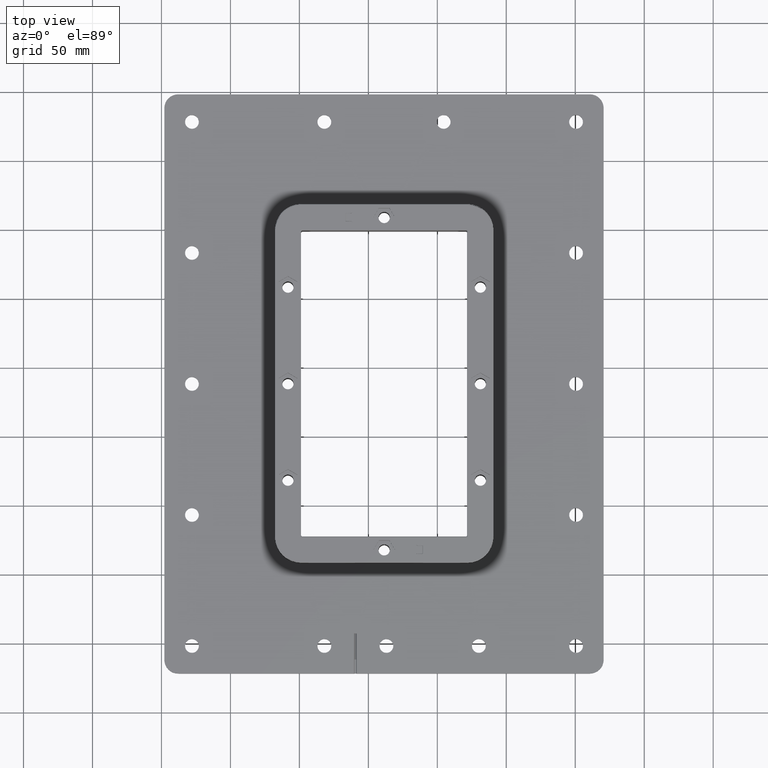
[diagram: clean part render]
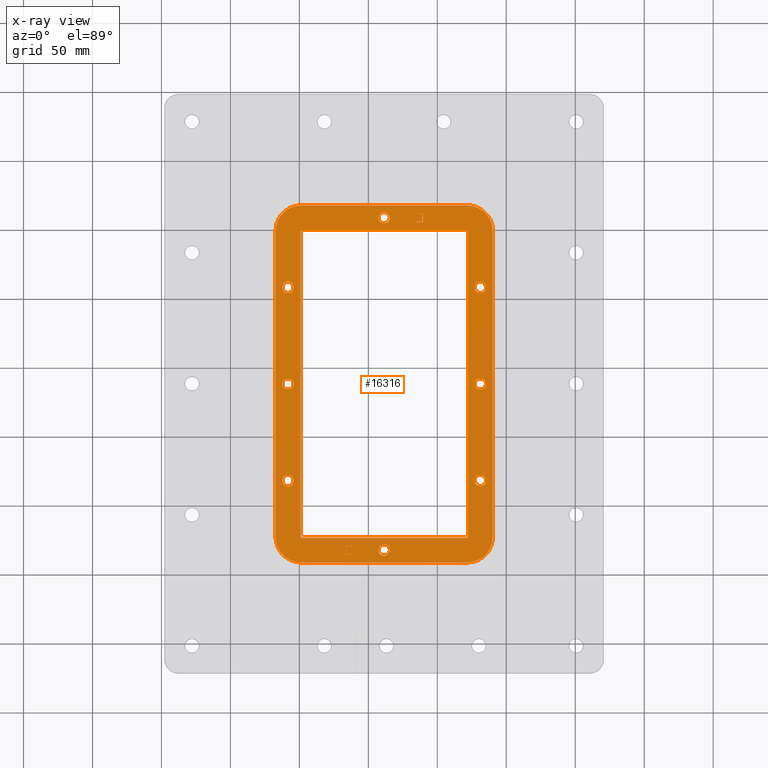
[diagram: x-ray — body ghosted, one internal face saturated and labeled with its STEP entity id]
A machine part, top view, then the same camera in x-ray: the body is ghosted and one INTERNAL B-rep face — a face not visible from any outside direction — is saturated and labeled: STEP entity #16316.
In plain terms, the highlighted planar face has unit normal (0, 0, 1).
Its self-contained STEP definition (entity closure, byte-faithful):
#130=CARTESIAN_POINT('',(272.660808067202590,289.436636017474260,-8.104976605923294));
#131=VERTEX_POINT('',#130);
#140=CARTESIAN_POINT('',(264.460808067202550,289.436636017474310,-8.104976605923294));
#141=VERTEX_POINT('',#140);
#142=CARTESIAN_POINT('',(268.560808067202570,289.436636017474260,-8.104976605923294));
#143=DIRECTION('',(0.0,0.0,1.0));
#144=DIRECTION('',(1.0,0.0,0.0));
#145=AXIS2_PLACEMENT_3D('',#142,#143,#144);
#146=CIRCLE('',#145,4.100000000000000);
#147=EDGE_CURVE('',#141,#131,#146,.T.);
#214=CARTESIAN_POINT('',(202.910808067202620,98.936636017474328,-8.104976605923294));
#215=VERTEX_POINT('',#214);
#224=CARTESIAN_POINT('',(194.710808067202550,98.936636017474342,-8.104976605923294));
#225=VERTEX_POINT('',#224);
#226=CARTESIAN_POINT('',(198.810808067202630,98.936636017474328,-8.104976605923294));
#227=DIRECTION('',(0.0,0.0,1.0));
#228=DIRECTION('',(1.0,0.0,0.0));
#229=AXIS2_PLACEMENT_3D('',#226,#227,#228);
#230=CIRCLE('',#229,4.100000000000000);
#231=EDGE_CURVE('',#225,#215,#230,.T.);
#256=CARTESIAN_POINT('',(202.910808067202620,168.936636017474230,-8.104976605923294));
#257=VERTEX_POINT('',#256);
#266=CARTESIAN_POINT('',(194.710808067202550,168.936636017474310,-8.104976605923294));
#267=VERTEX_POINT('',#266);
#268=CARTESIAN_POINT('',(198.810808067202630,168.936636017474230,-8.104976605923294));
#269=DIRECTION('',(0.0,0.0,1.0));
#270=DIRECTION('',(1.0,0.0,0.0));
#271=AXIS2_PLACEMENT_3D('',#268,#269,#270);
#272=CIRCLE('',#271,4.100000000000000);
#273=EDGE_CURVE('',#267,#257,#272,.T.);
#298=CARTESIAN_POINT('',(202.910808067202620,238.936636017474260,-8.104976605923294));
#299=VERTEX_POINT('',#298);
#308=CARTESIAN_POINT('',(194.710808067202550,238.936636017474340,-8.104976605923294));
#309=VERTEX_POINT('',#308);
#310=CARTESIAN_POINT('',(198.810808067202630,238.936636017474260,-8.104976605923294));
#311=DIRECTION('',(0.0,0.0,1.0));
#312=DIRECTION('',(1.0,0.0,0.0));
#313=AXIS2_PLACEMENT_3D('',#310,#311,#312);
#314=CIRCLE('',#313,4.100000000000000);
#315=EDGE_CURVE('',#309,#299,#314,.T.);
#3110=CARTESIAN_POINT('',(208.310808067202570,39.436636017474328,-8.104976605923294));
#3111=VERTEX_POINT('',#3110);
#3119=CARTESIAN_POINT('',(328.810808067202570,39.436636017474157,-8.104976605923326));
#3120=VERTEX_POINT('',#3119);
#3121=CARTESIAN_POINT('',(208.310808067202570,39.436636017474328,-8.104976605923294));
#3122=DIRECTION('',(1.0,0.0,0.0));
#3123=VECTOR('',#3122,120.500000000000000);
#3124=LINE('',#3121,#3123);
#3125=EDGE_CURVE('',#3111,#3120,#3124,.T.);
#3152=CARTESIAN_POINT('',(189.810808067202570,279.936636017474310,-8.104976605923294));
#3153=VERTEX_POINT('',#3152);
#3161=CARTESIAN_POINT('',(189.810808067202570,57.936636017474292,-8.104976605923294));
#3162=VERTEX_POINT('',#3161);
#3163=CARTESIAN_POINT('',(189.810808067202570,279.936636017474310,-8.104976605923294));
#3164=DIRECTION('',(0.0,-1.0,0.0));
#3165=VECTOR('',#3164,222.000000000000030);
#3166=LINE('',#3163,#3165);
#3167=EDGE_CURVE('',#3153,#3162,#3166,.T.);
#3194=CARTESIAN_POINT('',(328.810808067202570,298.436636017474140,-8.104976605923326));
#3195=VERTEX_POINT('',#3194);
#3203=CARTESIAN_POINT('',(208.310808067202570,298.436636017474310,-8.104976605923294));
#3204=VERTEX_POINT('',#3203);
#3205=CARTESIAN_POINT('',(328.810808067202570,298.436636017474140,-8.104976605923326));
#3206=DIRECTION('',(-1.0,0.0,0.0));
#3207=VECTOR('',#3206,120.500000000000000);
#3208=LINE('',#3205,#3207);
#3209=EDGE_CURVE('',#3195,#3204,#3208,.T.);
#3236=CARTESIAN_POINT('',(327.810808067202520,57.436636017474157,-8.104976605923326));
#3237=VERTEX_POINT('',#3236);
#3245=CARTESIAN_POINT('',(209.310808067202630,57.436636017474321,-8.104976605923294));
#3246=VERTEX_POINT('',#3245);
#3247=CARTESIAN_POINT('',(327.810808067202520,57.436636017474157,-8.104976605923326));
#3248=DIRECTION('',(-1.0,0.0,0.0));
#3249=VECTOR('',#3248,118.499999999999890);
#3250=LINE('',#3247,#3249);
#3251=EDGE_CURVE('',#3237,#3246,#3250,.T.);
#3278=CARTESIAN_POINT('',(207.810808067202690,58.936636017474306,-8.104976605923294));
#3279=VERTEX_POINT('',#3278);
#3287=CARTESIAN_POINT('',(207.810808067202690,278.936636017474370,-8.104976605923294));
#3288=VERTEX_POINT('',#3287);
#3289=CARTESIAN_POINT('',(207.810808067202690,58.936636017474306,-8.104976605923294));
#3290=DIRECTION('',(0.0,1.0,0.0));
#3291=VECTOR('',#3290,220.000000000000060);
#3292=LINE('',#3289,#3291);
#3293=EDGE_CURVE('',#3279,#3288,#3292,.T.);
#3320=CARTESIAN_POINT('',(209.310808067202600,280.436636017474310,-8.104976605923294));
#3321=VERTEX_POINT('',#3320);
#3329=CARTESIAN_POINT('',(327.810808067202460,280.436636017474140,-8.104976605923326));
#3330=VERTEX_POINT('',#3329);
#3331=CARTESIAN_POINT('',(209.310808067202600,280.436636017474310,-8.104976605923294));
#3332=DIRECTION('',(1.0,0.0,0.0));
#3333=VECTOR('',#3332,118.499999999999860);
#3334=LINE('',#3331,#3333);
#3335=EDGE_CURVE('',#3321,#3330,#3334,.T.);
#3942=CARTESIAN_POINT('',(240.699040768251140,51.290189408067555,-8.104976605923294));
#3943=VERTEX_POINT('',#3942);
#3959=CARTESIAN_POINT('',(240.514279000477470,50.936636017474299,-8.104976605923294));
#3960=VERTEX_POINT('',#3959);
#3967=CARTESIAN_POINT('',(241.145095133818190,50.936636017474299,-8.104976605923294));
#3968=DIRECTION('',(0.0,0.0,1.0));
#3969=DIRECTION('',(-1.0,0.0,0.0));
#3970=AXIS2_PLACEMENT_3D('',#3967,#3968,#3969);
#3971=ELLIPSE('',#3970,0.630816133340643,0.500000000000000);
#3972=EDGE_CURVE('',#3943,#3960,#3971,.T.);
#3982=CARTESIAN_POINT('',(240.699040768251110,45.583082626881037,-8.104976605923294));
#3983=VERTEX_POINT('',#3982);
#3992=CARTESIAN_POINT('',(240.514279000477470,45.936636017474299,-8.104976605923294));
#3993=VERTEX_POINT('',#3992);
#3994=CARTESIAN_POINT('',(241.145095133818190,45.936636017474299,-8.104976605923294));
#3995=DIRECTION('',(0.0,0.0,1.0));
#3996=DIRECTION('',(-1.0,0.0,0.0));
#3997=AXIS2_PLACEMENT_3D('',#3994,#3995,#3996);
#3998=ELLIPSE('',#3997,0.630816133340643,0.500000000000000);
#3999=EDGE_CURVE('',#3993,#3983,#3998,.T.);
#4026=CARTESIAN_POINT('',(296.296412139485990,286.683082626881120,-8.104976605923294));
#4027=VERTEX_POINT('',#4026);
#4043=CARTESIAN_POINT('',(295.850357773918970,286.536636017474340,-8.104976605923294));
#4044=VERTEX_POINT('',#4043);
#4051=CARTESIAN_POINT('',(295.850357773918970,287.036636017474390,-8.104976605923294));
#4052=DIRECTION('',(0.0,0.0,1.0));
#4053=DIRECTION('',(1.0,0.0,0.0));
#4054=AXIS2_PLACEMENT_3D('',#4051,#4052,#4053);
#4055=ELLIPSE('',#4054,0.630816133340643,0.500000000000000);
#4056=EDGE_CURVE('',#4044,#4027,#4055,.T.);
#4066=CARTESIAN_POINT('',(296.296412139485990,292.190189408067570,-8.104976605923296));
#4067=VERTEX_POINT('',#4066);
#4076=CARTESIAN_POINT('',(295.850357773918970,292.336636017474290,-8.104976605923294));
#4077=VERTEX_POINT('',#4076);
#4078=CARTESIAN_POINT('',(295.850357773918970,291.836636017474290,-8.104976605923296));
#4079=DIRECTION('',(0.0,0.0,1.0));
#4080=DIRECTION('',(1.0,0.0,0.0));
#4081=AXIS2_PLACEMENT_3D('',#4078,#4079,#4080);
#4082=ELLIPSE('',#4081,0.630816133340643,0.500000000000000);
#4083=EDGE_CURVE('',#4067,#4077,#4082,.T.);
#4276=CARTESIAN_POINT('',(245.191284531655440,45.143742798660867,-8.104976605923294));
#4277=VERTEX_POINT('',#4276);
#4286=CARTESIAN_POINT('',(244.299175800521340,45.436636017474328,-8.104976605923294));
#4287=VERTEX_POINT('',#4286);
#4288=CARTESIAN_POINT('',(244.299175800521340,44.436636017474306,-8.104976605923294));
#4289=DIRECTION('',(0.0,0.0,1.0));
#4290=DIRECTION('',(1.0,0.0,0.0));
#4291=AXIS2_PLACEMENT_3D('',#4288,#4289,#4290);
#4292=ELLIPSE('',#4291,1.261632266681286,1.0);
#4293=EDGE_CURVE('',#4277,#4287,#4292,.T.);
#4320=CARTESIAN_POINT('',(245.191284531655470,51.729529236287760,-8.104976605923294));
#4321=VERTEX_POINT('',#4320);
#4337=CARTESIAN_POINT('',(244.299175800521370,51.436636017474335,-8.104976605923294));
#4338=VERTEX_POINT('',#4337);
#4345=CARTESIAN_POINT('',(244.299175800521370,52.436636017474299,-8.104976605923294));
#4346=DIRECTION('',(0.0,0.0,1.0));
#4347=DIRECTION('',(1.0,0.0,0.0));
#4348=AXIS2_PLACEMENT_3D('',#4345,#4346,#4347);
#4349=ELLIPSE('',#4348,1.261632266681287,1.0);
#4350=EDGE_CURVE('',#4338,#4321,#4349,.T.);
#4360=CARTESIAN_POINT('',(291.930331602749790,286.243742798660890,-8.104976605923294));
#4361=VERTEX_POINT('',#4360);
#4370=CARTESIAN_POINT('',(292.822440333883890,286.536636017474340,-8.104976605923294));
#4371=VERTEX_POINT('',#4370);
#4372=CARTESIAN_POINT('',(292.822440333883890,285.536636017474340,-8.104976605923294));
#4373=DIRECTION('',(0.0,0.0,1.0));
#4374=DIRECTION('',(-1.0,0.0,0.0));
#4375=AXIS2_PLACEMENT_3D('',#4372,#4373,#4374);
#4376=ELLIPSE('',#4375,1.261632266681286,1.0);
#4377=EDGE_CURVE('',#4371,#4361,#4376,.T.);
#4404=CARTESIAN_POINT('',(291.930331602749790,292.629529236287790,-8.104976605923294));
#4405=VERTEX_POINT('',#4404);
#4421=CARTESIAN_POINT('',(292.822440333883890,292.336636017474290,-8.104976605923294));
#4422=VERTEX_POINT('',#4421);
#4429=CARTESIAN_POINT('',(292.822440333883890,293.336636017474350,-8.104976605923294));
#4430=DIRECTION('',(0.0,0.0,1.0));
#4431=DIRECTION('',(-1.0,0.0,0.0));
#4432=AXIS2_PLACEMENT_3D('',#4429,#4430,#4431);
#4433=ELLIPSE('',#4432,1.261632266681286,1.0);
#4434=EDGE_CURVE('',#4405,#4422,#4433,.T.);
#4570=CARTESIAN_POINT('',(264.460808067202550,48.436636017474221,-8.104976605923326));
#4571=VERTEX_POINT('',#4570);
#4580=CARTESIAN_POINT('',(272.660808067202590,48.436636017474157,-8.104976605923326));
#4581=VERTEX_POINT('',#4580);
#4582=CARTESIAN_POINT('',(268.560808067202570,48.436636017474221,-8.104976605923326));
#4583=DIRECTION('',(0.0,0.0,1.0));
#4584=DIRECTION('',(-1.0,0.0,0.0));
#4585=AXIS2_PLACEMENT_3D('',#4582,#4583,#4584);
#4586=CIRCLE('',#4585,4.100000000000000);
#4587=EDGE_CURVE('',#4581,#4571,#4586,.T.);
#4654=CARTESIAN_POINT('',(334.210808067202550,238.936636017474200,-8.104976605923326));
#4655=VERTEX_POINT('',#4654);
#4664=CARTESIAN_POINT('',(342.410808067202710,238.936636017474170,-8.104976605923326));
#4665=VERTEX_POINT('',#4664);
#4666=CARTESIAN_POINT('',(338.310808067202570,238.936636017474200,-8.104976605923326));
#4667=DIRECTION('',(0.0,0.0,1.0));
#4668=DIRECTION('',(-1.0,0.0,0.0));
#4669=AXIS2_PLACEMENT_3D('',#4666,#4667,#4668);
#4670=CIRCLE('',#4669,4.100000000000000);
#4671=EDGE_CURVE('',#4665,#4655,#4670,.T.);
#4696=CARTESIAN_POINT('',(334.210808067202550,168.936636017474230,-8.104976605923326));
#4697=VERTEX_POINT('',#4696);
#4706=CARTESIAN_POINT('',(342.410808067202710,168.936636017474170,-8.104976605923326));
#4707=VERTEX_POINT('',#4706);
#4708=CARTESIAN_POINT('',(338.310808067202570,168.936636017474230,-8.104976605923326));
#4709=DIRECTION('',(0.0,0.0,1.0));
#4710=DIRECTION('',(-1.0,0.0,0.0));
#4711=AXIS2_PLACEMENT_3D('',#4708,#4709,#4710);
#4712=CIRCLE('',#4711,4.100000000000000);
#4713=EDGE_CURVE('',#4707,#4697,#4712,.T.);
#4738=CARTESIAN_POINT('',(334.210808067202550,98.936636017474214,-8.104976605923326));
#4739=VERTEX_POINT('',#4738);
#4748=CARTESIAN_POINT('',(342.410808067202710,98.936636017474186,-8.104976605923326));
#4749=VERTEX_POINT('',#4748);
#4750=CARTESIAN_POINT('',(338.310808067202570,98.936636017474214,-8.104976605923326));
#4751=DIRECTION('',(0.0,0.0,1.0));
#4752=DIRECTION('',(-1.0,0.0,0.0));
#4753=AXIS2_PLACEMENT_3D('',#4750,#4751,#4752);
#4754=CIRCLE('',#4753,4.100000000000000);
#4755=EDGE_CURVE('',#4749,#4739,#4754,.T.);
#7350=CARTESIAN_POINT('',(347.310808067202570,57.936636017474150,-8.104976605923326));
#7351=VERTEX_POINT('',#7350);
#7359=CARTESIAN_POINT('',(347.310808067202570,279.936636017474200,-8.104976605923326));
#7360=VERTEX_POINT('',#7359);
#7361=CARTESIAN_POINT('',(347.310808067202570,57.936636017474150,-8.104976605923326));
#7362=DIRECTION('',(0.0,1.0,0.0));
#7363=VECTOR('',#7362,222.000000000000060);
#7364=LINE('',#7361,#7363);
#7365=EDGE_CURVE('',#7351,#7360,#7364,.T.);
#7392=CARTESIAN_POINT('',(329.310808067202520,278.936636017474140,-8.104976605923326));
#7393=VERTEX_POINT('',#7392);
#7401=CARTESIAN_POINT('',(329.310808067202520,58.936636017474164,-8.104976605923326));
#7402=VERTEX_POINT('',#7401);
#7403=CARTESIAN_POINT('',(329.310808067202520,278.936636017474140,-8.104976605923326));
#7404=DIRECTION('',(0.0,-1.0,0.0));
#7405=VECTOR('',#7404,219.999999999999970);
#7406=LINE('',#7403,#7405);
#7407=EDGE_CURVE('',#7393,#7402,#7406,.T.);
#8014=CARTESIAN_POINT('',(296.422575366154040,286.583082626880870,-8.104976605923326));
#8015=VERTEX_POINT('',#8014);
#8031=CARTESIAN_POINT('',(296.607337133927670,286.936636017474140,-8.104976605923326));
#8032=VERTEX_POINT('',#8031);
#8039=CARTESIAN_POINT('',(295.976521000587010,286.936636017474140,-8.104976605923326));
#8040=DIRECTION('',(0.0,0.0,1.0));
#8041=DIRECTION('',(1.0,0.0,0.0));
#8042=AXIS2_PLACEMENT_3D('',#8039,#8040,#8041);
#8043=ELLIPSE('',#8042,0.630816133340643,0.500000000000000);
#8044=EDGE_CURVE('',#8015,#8032,#8043,.T.);
#8054=CARTESIAN_POINT('',(296.422575366154040,292.290189408067420,-8.104976605923326));
#8055=VERTEX_POINT('',#8054);
#8064=CARTESIAN_POINT('',(296.607337133927670,291.936636017474140,-8.104976605923326));
#8065=VERTEX_POINT('',#8064);
#8066=CARTESIAN_POINT('',(295.976521000587010,291.936636017474140,-8.104976605923326));
#8067=DIRECTION('',(0.0,0.0,1.0));
#8068=DIRECTION('',(1.0,0.0,0.0));
#8069=AXIS2_PLACEMENT_3D('',#8066,#8067,#8068);
#8070=ELLIPSE('',#8069,0.630816133340643,0.500000000000000);
#8071=EDGE_CURVE('',#8065,#8055,#8070,.T.);
#8098=CARTESIAN_POINT('',(240.825203994919150,51.190189408067404,-8.104976605923326));
#8099=VERTEX_POINT('',#8098);
#8115=CARTESIAN_POINT('',(241.271258360486200,51.336636017474142,-8.104976605923326));
#8116=VERTEX_POINT('',#8115);
#8123=CARTESIAN_POINT('',(241.271258360486200,50.836636017474142,-8.104976605923326));
#8124=DIRECTION('',(0.0,0.0,1.0));
#8125=DIRECTION('',(-1.0,0.0,0.0));
#8126=AXIS2_PLACEMENT_3D('',#8123,#8124,#8125);
#8127=ELLIPSE('',#8126,0.630816133340643,0.500000000000000);
#8128=EDGE_CURVE('',#8116,#8099,#8127,.T.);
#8138=CARTESIAN_POINT('',(240.825203994919150,45.683082626880896,-8.104976605923328));
#8139=VERTEX_POINT('',#8138);
#8148=CARTESIAN_POINT('',(241.271258360486200,45.536636017474180,-8.104976605923326));
#8149=VERTEX_POINT('',#8148);
#8150=CARTESIAN_POINT('',(241.271258360486200,46.036636017474173,-8.104976605923328));
#8151=DIRECTION('',(0.0,0.0,1.0));
#8152=DIRECTION('',(-1.0,0.0,0.0));
#8153=AXIS2_PLACEMENT_3D('',#8150,#8151,#8152);
#8154=ELLIPSE('',#8153,0.630816133340643,0.500000000000000);
#8155=EDGE_CURVE('',#8139,#8149,#8154,.T.);
#8348=CARTESIAN_POINT('',(291.930331602749730,292.729529236287590,-8.104976605923326));
#8349=VERTEX_POINT('',#8348);
#8358=CARTESIAN_POINT('',(292.822440333883830,292.436636017474140,-8.104976605923326));
#8359=VERTEX_POINT('',#8358);
#8360=CARTESIAN_POINT('',(292.822440333883830,293.436636017474140,-8.104976605923326));
#8361=DIRECTION('',(0.0,0.0,1.0));
#8362=DIRECTION('',(-1.0,0.0,0.0));
#8363=AXIS2_PLACEMENT_3D('',#8360,#8361,#8362);
#8364=ELLIPSE('',#8363,1.261632266681286,1.0);
#8365=EDGE_CURVE('',#8349,#8359,#8364,.T.);
#8392=CARTESIAN_POINT('',(291.930331602749790,286.143742798660810,-8.104976605923326));
#8393=VERTEX_POINT('',#8392);
#8409=CARTESIAN_POINT('',(292.822440333883830,286.436636017474140,-8.104976605923326));
#8410=VERTEX_POINT('',#8409);
#8417=CARTESIAN_POINT('',(292.822440333883830,285.436636017474200,-8.104976605923326));
#8418=DIRECTION('',(0.0,0.0,1.0));
#8419=DIRECTION('',(-1.0,0.0,0.0));
#8420=AXIS2_PLACEMENT_3D('',#8417,#8418,#8419);
#8421=ELLIPSE('',#8420,1.261632266681287,1.0);
#8422=EDGE_CURVE('',#8410,#8393,#8421,.T.);
#8432=CARTESIAN_POINT('',(245.191284531655300,51.629529236287553,-8.104976605923326));
#8433=VERTEX_POINT('',#8432);
#8442=CARTESIAN_POINT('',(244.299175800521230,51.336636017474142,-8.104976605923326));
#8443=VERTEX_POINT('',#8442);
#8444=CARTESIAN_POINT('',(244.299175800521230,52.336636017474127,-8.104976605923326));
#8445=DIRECTION('',(0.0,0.0,1.0));
#8446=DIRECTION('',(1.0,0.0,0.0));
#8447=AXIS2_PLACEMENT_3D('',#8444,#8445,#8446);
#8448=ELLIPSE('',#8447,1.261632266681286,1.0);
#8449=EDGE_CURVE('',#8443,#8433,#8448,.T.);
#8476=CARTESIAN_POINT('',(245.191284531655270,45.243742798660755,-8.104976605923326));
#8477=VERTEX_POINT('',#8476);
#8493=CARTESIAN_POINT('',(244.299175800521230,45.536636017474180,-8.104976605923326));
#8494=VERTEX_POINT('',#8493);
#8501=CARTESIAN_POINT('',(244.299175800521230,44.536636017474187,-8.104976605923326));
#8502=DIRECTION('',(0.0,0.0,1.0));
#8503=DIRECTION('',(1.0,0.0,0.0));
#8504=AXIS2_PLACEMENT_3D('',#8501,#8502,#8503);
#8505=ELLIPSE('',#8504,1.261632266681286,1.0);
#8506=EDGE_CURVE('',#8477,#8494,#8505,.T.);
#8642=CARTESIAN_POINT('',(245.560808067202630,44.436636017474306,-8.104976605923294));
#8643=VERTEX_POINT('',#8642);
#8658=CARTESIAN_POINT('',(245.560808067202600,44.536636017474187,-8.104976605923326));
#8659=VERTEX_POINT('',#8658);
#8666=CARTESIAN_POINT('',(245.560808067202600,44.536636017474187,-8.104976605923326));
#8667=DIRECTION('',(2.842171E-013,-1.0,3.197442E-013));
#8668=VECTOR('',#8667,0.099999999999881);
#8669=LINE('',#8666,#8668);
#8670=EDGE_CURVE('',#8659,#8643,#8669,.T.);
#8971=CARTESIAN_POINT('',(244.299175800521230,44.536636017474187,-8.104976605923326));
#8972=DIRECTION('',(0.0,0.0,1.0));
#8973=DIRECTION('',(1.0,0.0,0.0));
#8974=AXIS2_PLACEMENT_3D('',#8971,#8972,#8973);
#8975=ELLIPSE('',#8974,1.261632266681286,1.0);
#8976=EDGE_CURVE('',#8659,#8477,#8975,.T.);
#9002=CARTESIAN_POINT('',(244.299175800521230,45.536636017474180,-8.104976605923326));
#9003=DIRECTION('',(-1.0,0.0,0.0));
#9004=VECTOR('',#9003,3.027917440035026);
#9005=LINE('',#9002,#9004);
#9006=EDGE_CURVE('',#8494,#8149,#9005,.T.);
#9026=CARTESIAN_POINT('',(245.560808067202600,52.336636017474127,-8.104976605923326));
#9027=VERTEX_POINT('',#9026);
#9034=CARTESIAN_POINT('',(244.299175800521230,52.336636017474127,-8.104976605923326));
#9035=DIRECTION('',(0.0,0.0,1.0));
#9036=DIRECTION('',(1.0,0.0,0.0));
#9037=AXIS2_PLACEMENT_3D('',#9034,#9035,#9036);
#9038=ELLIPSE('',#9037,1.261632266681286,1.0);
#9039=EDGE_CURVE('',#8433,#9027,#9038,.T.);
#9050=CARTESIAN_POINT('',(241.271258360486200,51.336636017474142,-8.104976605923326));
#9051=DIRECTION('',(1.0,0.0,0.0));
#9052=VECTOR('',#9051,3.027917440035026);
#9053=LINE('',#9050,#9052);
#9054=EDGE_CURVE('',#8116,#8443,#9053,.T.);
#9072=CARTESIAN_POINT('',(291.560808067202520,285.436636017474200,-8.104976605923326));
#9073=VERTEX_POINT('',#9072);
#9074=CARTESIAN_POINT('',(292.822440333883830,285.436636017474200,-8.104976605923326));
#9075=DIRECTION('',(0.0,0.0,1.0));
#9076=DIRECTION('',(-1.0,0.0,0.0));
#9077=AXIS2_PLACEMENT_3D('',#9074,#9075,#9076);
#9078=ELLIPSE('',#9077,1.261632266681287,1.0);
#9079=EDGE_CURVE('',#8393,#9073,#9078,.T.);
#9098=CARTESIAN_POINT('',(291.560808067202520,293.436636017474140,-8.104976605923326));
#9099=VERTEX_POINT('',#9098);
#9106=CARTESIAN_POINT('',(292.822440333883830,293.436636017474140,-8.104976605923326));
#9107=DIRECTION('',(0.0,0.0,1.0));
#9108=DIRECTION('',(-1.0,0.0,0.0));
#9109=AXIS2_PLACEMENT_3D('',#9106,#9107,#9108);
#9110=ELLIPSE('',#9109,1.261632266681286,1.0);
#9111=EDGE_CURVE('',#9099,#8349,#9110,.T.);
#9122=CARTESIAN_POINT('',(295.976521000587010,292.436636017474140,-8.104976605923326));
#9123=VERTEX_POINT('',#9122);
#9124=CARTESIAN_POINT('',(295.976521000587010,292.436636017474140,-8.104976605923326));
#9125=DIRECTION('',(-1.0,0.0,0.0));
#9126=VECTOR('',#9125,3.154080666703180);
#9127=LINE('',#9124,#9126);
#9128=EDGE_CURVE('',#9123,#8359,#9127,.T.);
#9326=CARTESIAN_POINT('',(240.640442227145570,46.036636017474173,-8.104976605923326));
#9327=VERTEX_POINT('',#9326);
#9334=CARTESIAN_POINT('',(241.271258360486200,46.036636017474173,-8.104976605923328));
#9335=DIRECTION('',(0.0,0.0,1.0));
#9336=DIRECTION('',(-1.0,0.0,0.0));
#9337=AXIS2_PLACEMENT_3D('',#9334,#9335,#9336);
#9338=ELLIPSE('',#9337,0.630816133340643,0.500000000000000);
#9339=EDGE_CURVE('',#9327,#8139,#9338,.T.);
#9350=CARTESIAN_POINT('',(240.640442227145570,50.836636017474142,-8.104976605923326));
#9351=VERTEX_POINT('',#9350);
#9352=CARTESIAN_POINT('',(241.271258360486200,50.836636017474142,-8.104976605923326));
#9353=DIRECTION('',(0.0,0.0,1.0));
#9354=DIRECTION('',(-1.0,0.0,0.0));
#9355=AXIS2_PLACEMENT_3D('',#9352,#9353,#9354);
#9356=ELLIPSE('',#9355,0.630816133340643,0.500000000000000);
#9357=EDGE_CURVE('',#8099,#9351,#9356,.T.);
#9385=CARTESIAN_POINT('',(295.976521000587010,291.936636017474140,-8.104976605923326));
#9386=DIRECTION('',(0.0,0.0,1.0));
#9387=DIRECTION('',(1.0,0.0,0.0));
#9388=AXIS2_PLACEMENT_3D('',#9385,#9386,#9387);
#9389=ELLIPSE('',#9388,0.630816133340643,0.500000000000000);
#9390=EDGE_CURVE('',#8055,#9123,#9389,.T.);
#9401=CARTESIAN_POINT('',(296.607337133927670,286.936636017474140,-8.104976605923326));
#9402=DIRECTION('',(0.0,1.0,0.0));
#9403=VECTOR('',#9402,5.0);
#9404=LINE('',#9401,#9403);
#9405=EDGE_CURVE('',#8032,#8065,#9404,.T.);
#9418=CARTESIAN_POINT('',(295.976521000587010,286.436636017474140,-8.104976605923326));
#9419=VERTEX_POINT('',#9418);
#9420=CARTESIAN_POINT('',(295.976521000587010,286.936636017474140,-8.104976605923326));
#9421=DIRECTION('',(0.0,0.0,1.0));
#9422=DIRECTION('',(1.0,0.0,0.0));
#9423=AXIS2_PLACEMENT_3D('',#9420,#9421,#9422);
#9424=ELLIPSE('',#9423,0.630816133340643,0.500000000000000);
#9425=EDGE_CURVE('',#9419,#8015,#9424,.T.);
#9445=CARTESIAN_POINT('',(292.822440333883830,286.436636017474140,-8.104976605923326));
#9446=DIRECTION('',(1.0,0.0,0.0));
#9447=VECTOR('',#9446,3.154080666703180);
#9448=LINE('',#9445,#9447);
#9449=EDGE_CURVE('',#8410,#9419,#9448,.T.);
#9533=CARTESIAN_POINT('',(240.640442227145570,50.836636017474142,-8.104976605923326));
#9534=DIRECTION('',(0.0,-1.0,0.0));
#9535=VECTOR('',#9534,4.799999999999969);
#9536=LINE('',#9533,#9535);
#9537=EDGE_CURVE('',#9351,#9327,#9536,.T.);
#9547=CARTESIAN_POINT('',(245.560808067202630,52.436636017474299,-8.104976605923294));
#9548=VERTEX_POINT('',#9547);
#9557=CARTESIAN_POINT('',(245.560808067202630,52.436636017474299,-8.104976605923294));
#9558=DIRECTION('',(-2.842171E-013,-1.0,-3.197442E-013));
#9559=VECTOR('',#9558,0.100000000000172);
#9560=LINE('',#9557,#9559);
#9561=EDGE_CURVE('',#9548,#9027,#9560,.T.);
#10363=CARTESIAN_POINT('',(327.810808067202520,58.936636017474164,-8.104976605923326));
#10364=DIRECTION('',(7.498304E-033,-7.498304E-033,-1.000000000000000));
#10365=DIRECTION('',(0.707106781186547,-0.707106781186547,1.060420E-032));
#10366=AXIS2_PLACEMENT_3D('',#10363,#10364,#10365);
#10367=CIRCLE('',#10366,1.500000000000000);
#10368=EDGE_CURVE('',#7402,#3237,#10367,.T.);
#10427=CARTESIAN_POINT('',(327.810808067202460,278.936636017474140,-8.104976605923326));
#10428=DIRECTION('',(-7.498304E-033,-7.498304E-033,-1.000000000000000));
#10429=DIRECTION('',(0.707106781186547,0.707106781186547,-1.060420E-032));
#10430=AXIS2_PLACEMENT_3D('',#10427,#10428,#10429);
#10431=CIRCLE('',#10430,1.500000000000000);
#10432=EDGE_CURVE('',#3330,#7393,#10431,.T.);
#10444=CARTESIAN_POINT('',(328.810808067202570,57.936636017474150,-8.104976605923326));
#10445=DIRECTION('',(-7.498304E-033,7.498304E-033,1.000000000000000));
#10446=DIRECTION('',(0.707106781186548,-0.707106781186548,1.060420E-032));
#10447=AXIS2_PLACEMENT_3D('',#10444,#10445,#10446);
#10448=CIRCLE('',#10447,18.500000000000000);
#10449=EDGE_CURVE('',#3120,#7351,#10448,.T.);
#10510=CARTESIAN_POINT('',(328.810808067202570,279.936636017474200,-8.104976605923326));
#10511=DIRECTION('',(7.498304E-033,7.498304E-033,1.000000000000000));
#10512=DIRECTION('',(0.707106781186548,0.707106781186548,-1.060420E-032));
#10513=AXIS2_PLACEMENT_3D('',#10510,#10511,#10512);
#10514=CIRCLE('',#10513,18.500000000000000);
#10515=EDGE_CURVE('',#7360,#3195,#10514,.T.);
#14456=CARTESIAN_POINT('',(338.310808067202570,98.936636017474214,-8.104976605923326));
#14457=DIRECTION('',(0.0,0.0,1.0));
#14458=DIRECTION('',(-1.0,0.0,0.0));
#14459=AXIS2_PLACEMENT_3D('',#14456,#14457,#14458);
#14460=CIRCLE('',#14459,4.100000000000000);
#14461=EDGE_CURVE('',#4739,#4749,#14460,.T.);
#14480=CARTESIAN_POINT('',(338.310808067202570,168.936636017474230,-8.104976605923326));
#14481=DIRECTION('',(0.0,0.0,1.0));
#14482=DIRECTION('',(-1.0,0.0,0.0));
#14483=AXIS2_PLACEMENT_3D('',#14480,#14481,#14482);
#14484=CIRCLE('',#14483,4.100000000000000);
#14485=EDGE_CURVE('',#4697,#4707,#14484,.T.);
#14504=CARTESIAN_POINT('',(338.310808067202570,238.936636017474200,-8.104976605923326));
#14505=DIRECTION('',(0.0,0.0,1.0));
#14506=DIRECTION('',(-1.0,0.0,0.0));
#14507=AXIS2_PLACEMENT_3D('',#14504,#14505,#14506);
#14508=CIRCLE('',#14507,4.100000000000000);
#14509=EDGE_CURVE('',#4655,#4665,#14508,.T.);
#14540=CARTESIAN_POINT('',(268.560808067202570,48.436636017474221,-8.104976605923326));
#14541=DIRECTION('',(0.0,0.0,1.0));
#14542=DIRECTION('',(-1.0,0.0,0.0));
#14543=AXIS2_PLACEMENT_3D('',#14540,#14541,#14542);
#14544=CIRCLE('',#14543,4.100000000000000);
#14545=EDGE_CURVE('',#4571,#4581,#14544,.T.);
#15465=CARTESIAN_POINT('',(291.560808067202570,293.336636017474350,-8.104976605923294));
#15466=VERTEX_POINT('',#15465);
#15473=CARTESIAN_POINT('',(291.560808067202570,293.336636017474350,-8.104976605923294));
#15474=DIRECTION('',(-5.684342E-013,1.0,-3.197442E-013));
#15475=VECTOR('',#15474,0.099999999999795);
#15476=LINE('',#15473,#15475);
#15477=EDGE_CURVE('',#15466,#9099,#15476,.T.);
#16001=CARTESIAN_POINT('',(292.822440333883890,293.336636017474350,-8.104976605923294));
#16002=DIRECTION('',(0.0,0.0,1.0));
#16003=DIRECTION('',(-1.0,0.0,0.0));
#16004=AXIS2_PLACEMENT_3D('',#16001,#16002,#16003);
#16005=ELLIPSE('',#16004,1.261632266681286,1.0);
#16006=EDGE_CURVE('',#15466,#4405,#16005,.T.);
#16021=CARTESIAN_POINT('',(292.822440333883890,292.336636017474290,-8.104976605923294));
#16022=DIRECTION('',(1.0,0.0,0.0));
#16023=VECTOR('',#16022,3.027917440035083);
#16024=LINE('',#16021,#16023);
#16025=EDGE_CURVE('',#4422,#4077,#16024,.T.);
#16037=CARTESIAN_POINT('',(291.560808067202570,285.536636017474340,-8.104976605923294));
#16038=VERTEX_POINT('',#16037);
#16045=CARTESIAN_POINT('',(292.822440333883890,285.536636017474340,-8.104976605923294));
#16046=DIRECTION('',(0.0,0.0,1.0));
#16047=DIRECTION('',(-1.0,0.0,0.0));
#16048=AXIS2_PLACEMENT_3D('',#16045,#16046,#16047);
#16049=ELLIPSE('',#16048,1.261632266681286,1.0);
#16050=EDGE_CURVE('',#4361,#16038,#16049,.T.);
#16061=CARTESIAN_POINT('',(295.850357773918970,286.536636017474340,-8.104976605923294));
#16062=DIRECTION('',(-1.0,0.0,0.0));
#16063=VECTOR('',#16062,3.027917440035083);
#16064=LINE('',#16061,#16063);
#16065=EDGE_CURVE('',#4044,#4371,#16064,.T.);
#16078=CARTESIAN_POINT('',(244.299175800521370,52.436636017474299,-8.104976605923294));
#16079=DIRECTION('',(0.0,0.0,1.0));
#16080=DIRECTION('',(1.0,0.0,0.0));
#16081=AXIS2_PLACEMENT_3D('',#16078,#16079,#16080);
#16082=ELLIPSE('',#16081,1.261632266681287,1.0);
#16083=EDGE_CURVE('',#4321,#9548,#16082,.T.);
#16096=CARTESIAN_POINT('',(245.185808067202660,168.936636017474230,-8.104976605923294));
#16097=DIRECTION('',(0.0,0.0,1.0));
#16098=DIRECTION('',(1.0,0.0,0.0));
#16099=AXIS2_PLACEMENT_3D('',#16096,#16097,#16098);
#16100=PLANE('',#16099);
#16101=ORIENTED_EDGE('',*,*,#3209,.F.);
#16102=ORIENTED_EDGE('',*,*,#10515,.F.);
#16103=ORIENTED_EDGE('',*,*,#7365,.F.);
#16104=ORIENTED_EDGE('',*,*,#10449,.F.);
#16105=ORIENTED_EDGE('',*,*,#3125,.F.);
#16106=CARTESIAN_POINT('',(208.310808067202570,57.936636017474292,-8.104976605923294));
#16107=DIRECTION('',(0.0,0.0,1.000000000000000));
#16108=DIRECTION('',(-0.707106781186548,-0.707106781186548,0.0));
#16109=AXIS2_PLACEMENT_3D('',#16106,#16107,#16108);
#16110=CIRCLE('',#16109,18.500000000000000);
#16111=EDGE_CURVE('',#3162,#3111,#16110,.T.);
#16112=ORIENTED_EDGE('',*,*,#16111,.F.);
#16113=ORIENTED_EDGE('',*,*,#3167,.F.);
#16114=CARTESIAN_POINT('',(208.310808067202570,279.936636017474310,-8.104976605923294));
#16115=DIRECTION('',(0.0,0.0,1.000000000000000));
#16116=DIRECTION('',(-0.707106781186548,0.707106781186548,0.0));
#16117=AXIS2_PLACEMENT_3D('',#16114,#16115,#16116);
#16118=CIRCLE('',#16117,18.500000000000000);
#16119=EDGE_CURVE('',#3204,#3153,#16118,.T.);
#16120=ORIENTED_EDGE('',*,*,#16119,.F.);
#16121=EDGE_LOOP('',(#16101,#16102,#16103,#16104,#16105,#16112,#16113,#16120));
#16122=FACE_OUTER_BOUND('',#16121,.T.);
#16123=ORIENTED_EDGE('',*,*,#3335,.F.);
#16124=CARTESIAN_POINT('',(209.310808067202600,278.936636017474370,-8.104976605923294));
#16125=DIRECTION('',(0.0,0.0,-1.000000000000000));
#16126=DIRECTION('',(-0.707106781186547,0.707106781186547,0.0));
#16127=AXIS2_PLACEMENT_3D('',#16124,#16125,#16126);
#16128=CIRCLE('',#16127,1.500000000000000);
#16129=EDGE_CURVE('',#3288,#3321,#16128,.T.);
#16130=ORIENTED_EDGE('',*,*,#16129,.F.);
#16131=ORIENTED_EDGE('',*,*,#3293,.F.);
#16132=CARTESIAN_POINT('',(209.310808067202630,58.936636017474306,-8.104976605923294));
#16133=DIRECTION('',(0.0,0.0,-1.000000000000000));
#16134=DIRECTION('',(-0.707106781186547,-0.707106781186547,0.0));
#16135=AXIS2_PLACEMENT_3D('',#16132,#16133,#16134);
#16136=CIRCLE('',#16135,1.500000000000000);
#16137=EDGE_CURVE('',#3246,#3279,#16136,.T.);
#16138=ORIENTED_EDGE('',*,*,#16137,.F.);
#16139=ORIENTED_EDGE('',*,*,#3251,.F.);
#16140=ORIENTED_EDGE('',*,*,#10368,.F.);
#16141=ORIENTED_EDGE('',*,*,#7407,.F.);
#16142=ORIENTED_EDGE('',*,*,#10432,.F.);
#16143=EDGE_LOOP('',(#16123,#16130,#16131,#16138,#16139,#16140,#16141,#16142));
#16144=FACE_BOUND('',#16143,.T.);
#16145=ORIENTED_EDGE('',*,*,#8422,.F.);
#16146=ORIENTED_EDGE('',*,*,#9449,.T.);
#16147=ORIENTED_EDGE('',*,*,#9425,.T.);
#16148=ORIENTED_EDGE('',*,*,#8044,.T.);
#16149=ORIENTED_EDGE('',*,*,#9405,.T.);
#16150=ORIENTED_EDGE('',*,*,#8071,.T.);
#16151=ORIENTED_EDGE('',*,*,#9390,.T.);
#16152=ORIENTED_EDGE('',*,*,#9128,.T.);
#16153=ORIENTED_EDGE('',*,*,#8365,.F.);
#16154=ORIENTED_EDGE('',*,*,#9111,.F.);
#16155=ORIENTED_EDGE('',*,*,#15477,.F.);
#16156=ORIENTED_EDGE('',*,*,#16006,.T.);
#16157=ORIENTED_EDGE('',*,*,#4434,.T.);
#16158=ORIENTED_EDGE('',*,*,#16025,.T.);
#16159=ORIENTED_EDGE('',*,*,#4083,.F.);
#16160=CARTESIAN_POINT('',(296.481173907259570,291.836636017474290,-8.104976605923294));
#16161=VERTEX_POINT('',#16160);
#16162=CARTESIAN_POINT('',(295.850357773918970,291.836636017474290,-8.104976605923296));
#16163=DIRECTION('',(0.0,0.0,1.0));
#16164=DIRECTION('',(1.0,0.0,0.0));
#16165=AXIS2_PLACEMENT_3D('',#16162,#16163,#16164);
#16166=ELLIPSE('',#16165,0.630816133340643,0.500000000000000);
#16167=EDGE_CURVE('',#16161,#4067,#16166,.T.);
#16168=ORIENTED_EDGE('',*,*,#16167,.F.);
#16169=CARTESIAN_POINT('',(296.481173907259570,287.036636017474390,-8.104976605923294));
#16170=VERTEX_POINT('',#16169);
#16171=CARTESIAN_POINT('',(296.481173907259570,287.036636017474390,-8.104976605923294));
#16172=DIRECTION('',(0.0,1.0,0.0));
#16173=VECTOR('',#16172,4.799999999999898);
#16174=LINE('',#16171,#16173);
#16175=EDGE_CURVE('',#16170,#16161,#16174,.T.);
#16176=ORIENTED_EDGE('',*,*,#16175,.F.);
#16177=CARTESIAN_POINT('',(295.850357773918970,287.036636017474390,-8.104976605923294));
#16178=DIRECTION('',(0.0,0.0,1.0));
#16179=DIRECTION('',(1.0,0.0,0.0));
#16180=AXIS2_PLACEMENT_3D('',#16177,#16178,#16179);
#16181=ELLIPSE('',#16180,0.630816133340643,0.500000000000000);
#16182=EDGE_CURVE('',#4027,#16170,#16181,.T.);
#16183=ORIENTED_EDGE('',*,*,#16182,.F.);
#16184=ORIENTED_EDGE('',*,*,#4056,.F.);
#16185=ORIENTED_EDGE('',*,*,#16065,.T.);
#16186=ORIENTED_EDGE('',*,*,#4377,.T.);
#16187=ORIENTED_EDGE('',*,*,#16050,.T.);
#16188=CARTESIAN_POINT('',(291.560808067202520,285.436636017474200,-8.104976605923326));
#16189=DIRECTION('',(5.684342E-013,1.0,3.197442E-013));
#16190=VECTOR('',#16189,0.100000000000136);
#16191=LINE('',#16188,#16190);
#16192=EDGE_CURVE('',#9073,#16038,#16191,.T.);
#16193=ORIENTED_EDGE('',*,*,#16192,.F.);
#16194=ORIENTED_EDGE('',*,*,#9079,.F.);
#16195=EDGE_LOOP('',(#16145,#16146,#16147,#16148,#16149,#16150,#16151,#16152,#16153,#16154,#16155,#16156,#16157,#16158,#16159,#16168,#16176,#16183,#16184,#16185,#16186,#16187,#16193,#16194));
#16196=FACE_BOUND('',#16195,.T.);
#16197=ORIENTED_EDGE('',*,*,#4755,.T.);
#16198=ORIENTED_EDGE('',*,*,#14461,.T.);
#16199=EDGE_LOOP('',(#16197,#16198));
#16200=FACE_BOUND('',#16199,.T.);
#16201=ORIENTED_EDGE('',*,*,#4713,.T.);
#16202=ORIENTED_EDGE('',*,*,#14485,.T.);
#16203=EDGE_LOOP('',(#16201,#16202));
#16204=FACE_BOUND('',#16203,.T.);
#16205=ORIENTED_EDGE('',*,*,#4671,.T.);
#16206=ORIENTED_EDGE('',*,*,#14509,.T.);
#16207=EDGE_LOOP('',(#16205,#16206));
#16208=FACE_BOUND('',#16207,.T.);
#16209=ORIENTED_EDGE('',*,*,#4587,.T.);
#16210=ORIENTED_EDGE('',*,*,#14545,.T.);
#16211=EDGE_LOOP('',(#16209,#16210));
#16212=FACE_BOUND('',#16211,.T.);
#16213=ORIENTED_EDGE('',*,*,#8670,.F.);
#16214=ORIENTED_EDGE('',*,*,#8976,.T.);
#16215=ORIENTED_EDGE('',*,*,#8506,.T.);
#16216=ORIENTED_EDGE('',*,*,#9006,.T.);
#16217=ORIENTED_EDGE('',*,*,#8155,.F.);
#16218=ORIENTED_EDGE('',*,*,#9339,.F.);
#16219=ORIENTED_EDGE('',*,*,#9537,.F.);
#16220=ORIENTED_EDGE('',*,*,#9357,.F.);
#16221=ORIENTED_EDGE('',*,*,#8128,.F.);
#16222=ORIENTED_EDGE('',*,*,#9054,.T.);
#16223=ORIENTED_EDGE('',*,*,#8449,.T.);
#16224=ORIENTED_EDGE('',*,*,#9039,.T.);
#16225=ORIENTED_EDGE('',*,*,#9561,.F.);
#16226=ORIENTED_EDGE('',*,*,#16083,.F.);
#16227=ORIENTED_EDGE('',*,*,#4350,.F.);
#16228=CARTESIAN_POINT('',(241.145095133818190,51.436636017474335,-8.104976605923294));
#16229=VERTEX_POINT('',#16228);
#16230=CARTESIAN_POINT('',(244.299175800521370,51.436636017474335,-8.104976605923294));
#16231=DIRECTION('',(-1.0,0.0,0.0));
#16232=VECTOR('',#16231,3.154080666703180);
#16233=LINE('',#16230,#16232);
#16234=EDGE_CURVE('',#4338,#16229,#16233,.T.);
#16235=ORIENTED_EDGE('',*,*,#16234,.T.);
#16236=CARTESIAN_POINT('',(241.145095133818190,50.936636017474299,-8.104976605923294));
#16237=DIRECTION('',(0.0,0.0,1.0));
#16238=DIRECTION('',(-1.0,0.0,0.0));
#16239=AXIS2_PLACEMENT_3D('',#16236,#16237,#16238);
#16240=ELLIPSE('',#16239,0.630816133340643,0.500000000000000);
#16241=EDGE_CURVE('',#16229,#3943,#16240,.T.);
#16242=ORIENTED_EDGE('',*,*,#16241,.T.);
#16243=ORIENTED_EDGE('',*,*,#3972,.T.);
#16244=CARTESIAN_POINT('',(240.514279000477470,50.936636017474299,-8.104976605923294));
#16245=DIRECTION('',(0.0,-1.0,0.0));
#16246=VECTOR('',#16245,5.0);
#16247=LINE('',#16244,#16246);
#16248=EDGE_CURVE('',#3960,#3993,#16247,.T.);
#16249=ORIENTED_EDGE('',*,*,#16248,.T.);
#16250=ORIENTED_EDGE('',*,*,#3999,.T.);
#16251=CARTESIAN_POINT('',(241.145095133818190,45.436636017474328,-8.104976605923294));
#16252=VERTEX_POINT('',#16251);
#16253=CARTESIAN_POINT('',(241.145095133818190,45.936636017474299,-8.104976605923294));
#16254=DIRECTION('',(0.0,0.0,1.0));
#16255=DIRECTION('',(-1.0,0.0,0.0));
#16256=AXIS2_PLACEMENT_3D('',#16253,#16254,#16255);
#16257=ELLIPSE('',#16256,0.630816133340643,0.500000000000000);
#16258=EDGE_CURVE('',#3983,#16252,#16257,.T.);
#16259=ORIENTED_EDGE('',*,*,#16258,.T.);
#16260=CARTESIAN_POINT('',(241.145095133818190,45.436636017474328,-8.104976605923294));
#16261=DIRECTION('',(1.0,0.0,0.0));
#16262=VECTOR('',#16261,3.154080666703152);
#16263=LINE('',#16260,#16262);
#16264=EDGE_CURVE('',#16252,#4287,#16263,.T.);
#16265=ORIENTED_EDGE('',*,*,#16264,.T.);
#16266=ORIENTED_EDGE('',*,*,#4293,.F.);
#16267=CARTESIAN_POINT('',(244.299175800521340,44.436636017474306,-8.104976605923294));
#16268=DIRECTION('',(0.0,0.0,1.0));
#16269=DIRECTION('',(1.0,0.0,0.0));
#16270=AXIS2_PLACEMENT_3D('',#16267,#16268,#16269);
#16271=ELLIPSE('',#16270,1.261632266681286,1.0);
#16272=EDGE_CURVE('',#8643,#4277,#16271,.T.);
#16273=ORIENTED_EDGE('',*,*,#16272,.F.);
#16274=EDGE_LOOP('',(#16213,#16214,#16215,#16216,#16217,#16218,#16219,#16220,#16221,#16222,#16223,#16224,#16225,#16226,#16227,#16235,#16242,#16243,#16249,#16250,#16259,#16265,#16266,#16273));
#16275=FACE_BOUND('',#16274,.T.);
#16276=ORIENTED_EDGE('',*,*,#147,.T.);
#16277=CARTESIAN_POINT('',(268.560808067202570,289.436636017474260,-8.104976605923294));
#16278=DIRECTION('',(0.0,0.0,1.0));
#16279=DIRECTION('',(1.0,0.0,0.0));
#16280=AXIS2_PLACEMENT_3D('',#16277,#16278,#16279);
#16281=CIRCLE('',#16280,4.100000000000000);
#16282=EDGE_CURVE('',#131,#141,#16281,.T.);
#16283=ORIENTED_EDGE('',*,*,#16282,.T.);
#16284=EDGE_LOOP('',(#16276,#16283));
#16285=FACE_BOUND('',#16284,.T.);
#16286=ORIENTED_EDGE('',*,*,#231,.T.);
#16287=CARTESIAN_POINT('',(198.810808067202630,98.936636017474328,-8.104976605923294));
#16288=DIRECTION('',(0.0,0.0,1.0));
#16289=DIRECTION('',(1.0,0.0,0.0));
#16290=AXIS2_PLACEMENT_3D('',#16287,#16288,#16289);
#16291=CIRCLE('',#16290,4.100000000000000);
#16292=EDGE_CURVE('',#215,#225,#16291,.T.);
#16293=ORIENTED_EDGE('',*,*,#16292,.T.);
#16294=EDGE_LOOP('',(#16286,#16293));
#16295=FACE_BOUND('',#16294,.T.);
#16296=ORIENTED_EDGE('',*,*,#273,.T.);
#16297=CARTESIAN_POINT('',(198.810808067202630,168.936636017474230,-8.104976605923294));
#16298=DIRECTION('',(0.0,0.0,1.0));
#16299=DIRECTION('',(1.0,0.0,0.0));
#16300=AXIS2_PLACEMENT_3D('',#16297,#16298,#16299);
#16301=CIRCLE('',#16300,4.100000000000000);
#16302=EDGE_CURVE('',#257,#267,#16301,.T.);
#16303=ORIENTED_EDGE('',*,*,#16302,.T.);
#16304=EDGE_LOOP('',(#16296,#16303));
#16305=FACE_BOUND('',#16304,.T.);
#16306=ORIENTED_EDGE('',*,*,#315,.T.);
#16307=CARTESIAN_POINT('',(198.810808067202630,238.936636017474260,-8.104976605923294));
#16308=DIRECTION('',(0.0,0.0,1.0));
#16309=DIRECTION('',(1.0,0.0,0.0));
#16310=AXIS2_PLACEMENT_3D('',#16307,#16308,#16309);
#16311=CIRCLE('',#16310,4.100000000000000);
#16312=EDGE_CURVE('',#299,#309,#16311,.T.);
#16313=ORIENTED_EDGE('',*,*,#16312,.T.);
#16314=EDGE_LOOP('',(#16306,#16313));
#16315=FACE_BOUND('',#16314,.T.);
#16316=ADVANCED_FACE('',(#16122,#16144,#16196,#16200,#16204,#16208,#16212,#16275,#16285,#16295,#16305,#16315),#16100,.F.);